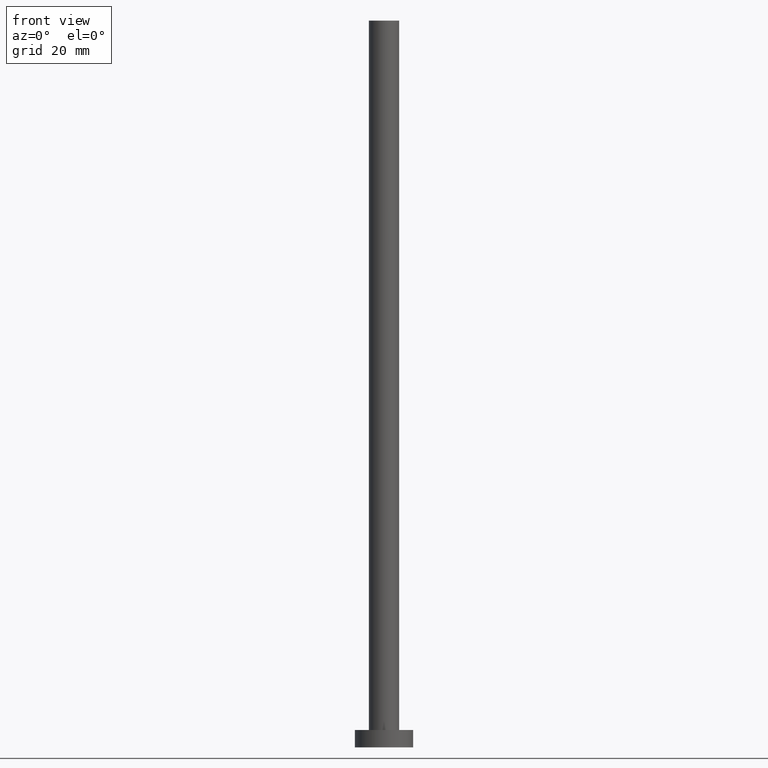
[diagram: clean part render]
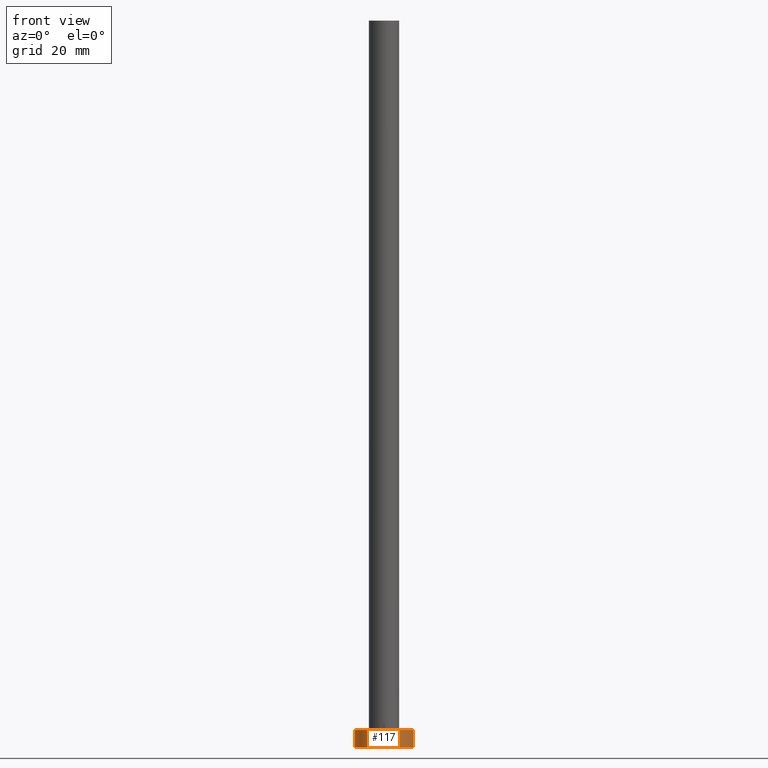
[diagram: same view with one face highlighted and labeled with its STEP entity id]
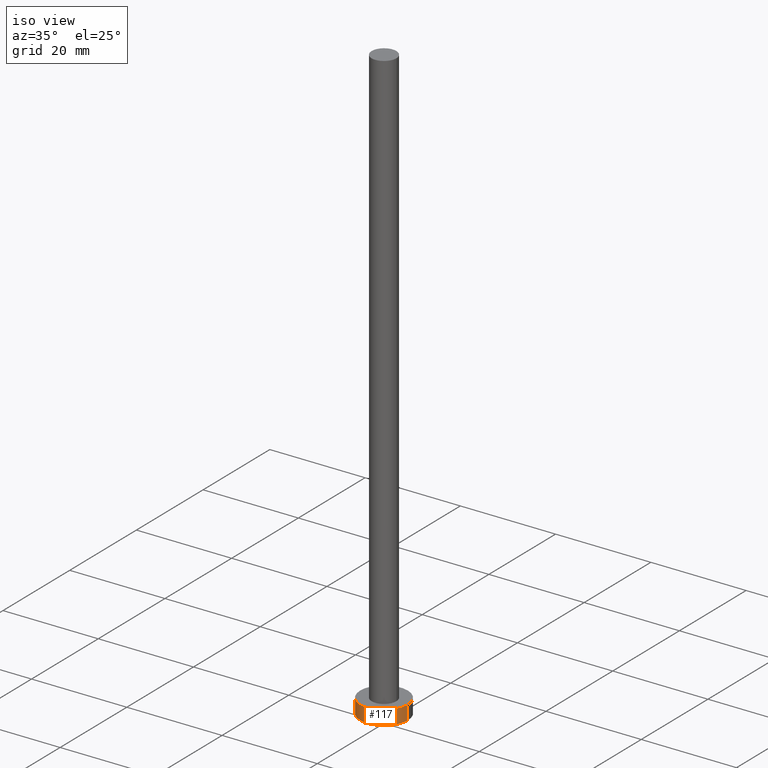
[diagram: same view with one face highlighted and labeled with its STEP entity id]
A machine part, front view. The second image highlights one B-rep face of the part: STEP entity #117.
A second angle (iso view) of the same face is appended — the face is thin or edge-on in the first view.
In plain terms, the highlighted cylindrical surface (edge-blend (fillet) strip) has radius 5 mm, axis along (-0, -0, -1).
Its self-contained STEP definition (entity closure, byte-faithful):
#6 = CARTESIAN_POINT ( 'NONE',  ( -5.000000000000000000, 0.000000000000000000, 3.000000000000000000 ) ) ;
#13 = VECTOR ( 'NONE', #165, 1000.000000000000000 ) ;
#17 = EDGE_CURVE ( 'NONE', #206, #250, #66, .T. ) ;
#33 = CIRCLE ( 'NONE', #45, 5.000000000000000000 ) ;
#41 = CARTESIAN_POINT ( 'NONE',  ( 0.000000000000000000, 0.000000000000000000, 3.000000000000000000 ) ) ;
#44 = ORIENTED_EDGE ( 'NONE', *, *, #94, .T. ) ;
#45 = AXIS2_PLACEMENT_3D ( 'NONE', #247, #99, #152 ) ;
#66 = LINE ( 'NONE', #110, #229 ) ;
#71 = CARTESIAN_POINT ( 'NONE',  ( 5.000000000000000000, 6.123233995736766282E-16, 3.000000000000000000 ) ) ;
#74 = LINE ( 'NONE', #163, #13 ) ;
#82 = DIRECTION ( 'NONE',  ( -0.000000000000000000, -0.000000000000000000, -1.000000000000000000 ) ) ;
#91 = CIRCLE ( 'NONE', #197, 5.000000000000000000 ) ;
#94 = EDGE_CURVE ( 'NONE', #250, #131, #33, .T. ) ;
#99 = DIRECTION ( 'NONE',  ( 0.000000000000000000, 0.000000000000000000, 1.000000000000000000 ) ) ;
#110 = CARTESIAN_POINT ( 'NONE',  ( -5.000000000000000000, 0.000000000000000000, 3.000000000000000000 ) ) ;
#117 = ADVANCED_FACE ( 'NONE', ( #226 ), #243, .T. ) ;
#131 = VERTEX_POINT ( 'NONE', #146 ) ;
#132 = DIRECTION ( 'NONE',  ( 1.000000000000000000, 0.000000000000000000, 0.000000000000000000 ) ) ;
#146 = CARTESIAN_POINT ( 'NONE',  ( 5.000000000000000000, 6.123233995736766282E-16, 0.000000000000000000 ) ) ;
#150 = CARTESIAN_POINT ( 'NONE',  ( -5.000000000000000000, 0.000000000000000000, 0.000000000000000000 ) ) ;
#152 = DIRECTION ( 'NONE',  ( 1.000000000000000000, 0.000000000000000000, 0.000000000000000000 ) ) ;
#154 = AXIS2_PLACEMENT_3D ( 'NONE', #223, #82, #221 ) ;
#155 = ORIENTED_EDGE ( 'NONE', *, *, #17, .T. ) ;
#163 = CARTESIAN_POINT ( 'NONE',  ( 5.000000000000000000, 6.123233995736766282E-16, 3.000000000000000000 ) ) ;
#165 = DIRECTION ( 'NONE',  ( -0.000000000000000000, -0.000000000000000000, -1.000000000000000000 ) ) ;
#175 = ORIENTED_EDGE ( 'NONE', *, *, #233, .F. ) ;
#180 = DIRECTION ( 'NONE',  ( -0.000000000000000000, -0.000000000000000000, -1.000000000000000000 ) ) ;
#183 = DIRECTION ( 'NONE',  ( 0.000000000000000000, 0.000000000000000000, 1.000000000000000000 ) ) ;
#192 = EDGE_CURVE ( 'NONE', #206, #255, #91, .T. ) ;
#197 = AXIS2_PLACEMENT_3D ( 'NONE', #41, #183, #132 ) ;
#206 = VERTEX_POINT ( 'NONE', #6 ) ;
#221 = DIRECTION ( 'NONE',  ( -1.000000000000000000, 0.000000000000000000, 0.000000000000000000 ) ) ;
#223 = CARTESIAN_POINT ( 'NONE',  ( 0.000000000000000000, 0.000000000000000000, 3.000000000000000000 ) ) ;
#226 = FACE_OUTER_BOUND ( 'NONE', #234, .T. ) ;
#229 = VECTOR ( 'NONE', #180, 1000.000000000000000 ) ;
#232 = ORIENTED_EDGE ( 'NONE', *, *, #192, .F. ) ;
#233 = EDGE_CURVE ( 'NONE', #255, #131, #74, .T. ) ;
#234 = EDGE_LOOP ( 'NONE', ( #175, #232, #155, #44 ) ) ;
#243 = CYLINDRICAL_SURFACE ( 'NONE', #154, 5.000000000000000000 ) ;
#247 = CARTESIAN_POINT ( 'NONE',  ( 0.000000000000000000, 0.000000000000000000, 0.000000000000000000 ) ) ;
#250 = VERTEX_POINT ( 'NONE', #150 ) ;
#255 = VERTEX_POINT ( 'NONE', #71 ) ;